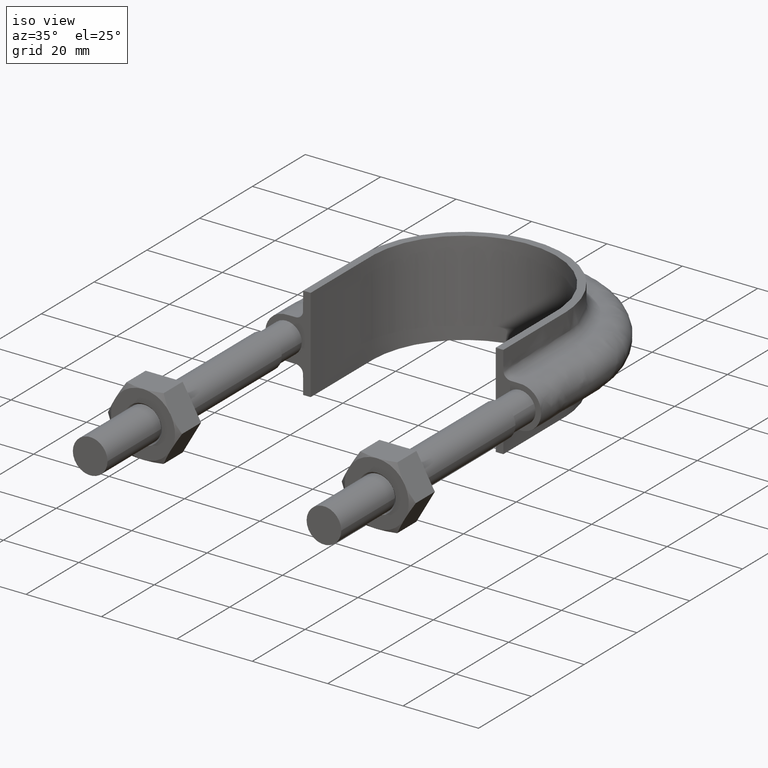
[diagram: clean part render]
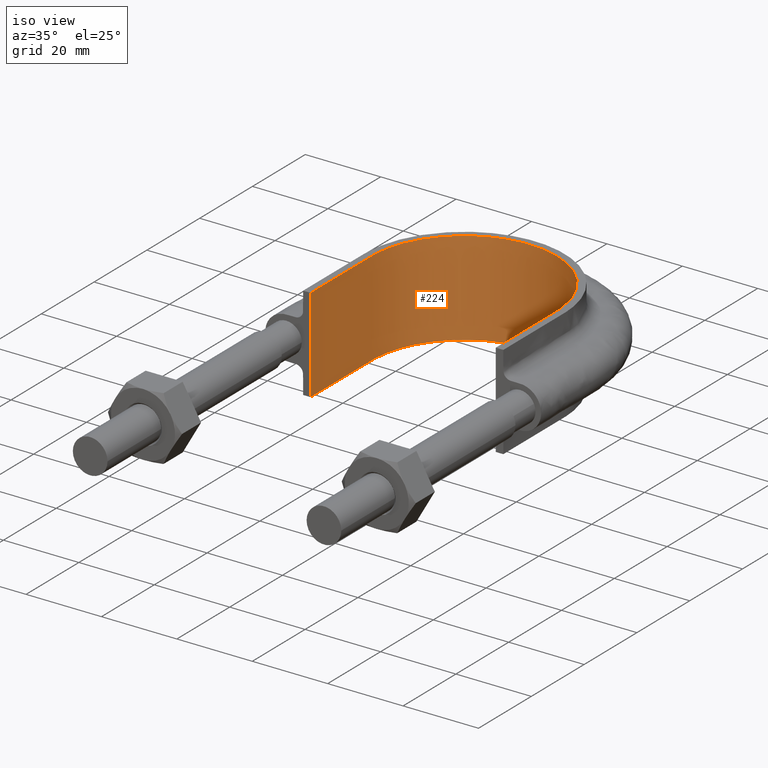
[diagram: same view with one face highlighted and labeled with its STEP entity id]
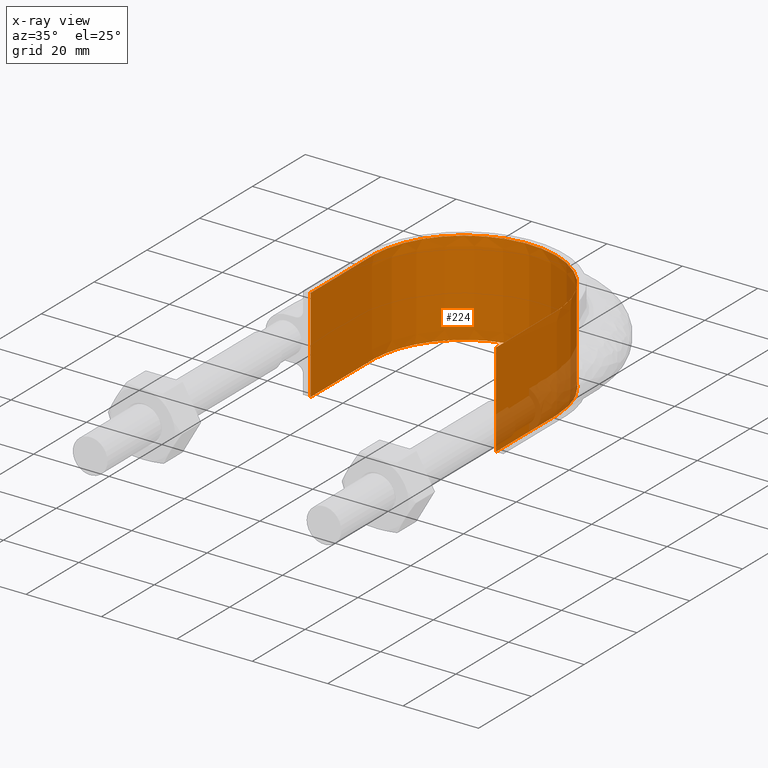
[diagram: x-ray of the same camera — body ghosted, the highlighted face saturated]
A machine part, iso view. The second image highlights one B-rep face of the part: STEP entity #224.
The next image is the same camera in x-ray: the body ghosted, the highlighted face saturated — about 9% of this face is hidden behind the body in this view.
In plain terms, the highlighted face is a SurfaceOfExtrusion surface.
Its self-contained STEP definition (entity closure, byte-faithful):
#224 = ADVANCED_FACE( '', ( #308 ), #309, .T. );
#308 = FACE_OUTER_BOUND( '', #1006, .T. );
#309 = SURFACE_OF_LINEAR_EXTRUSION( '', #1007, #1008 );
#1006 = EDGE_LOOP( '', ( #1499, #1500, #1501, #1502 ) );
#1007 = B_SPLINE_CURVE_WITH_KNOTS( '', 3, ( #1503, #1504, #1505, #1506, #1507, #1508, #1509, #1510, #1511, #1512, #1513, #1514, #1515, #1516, #1517, #1518, #1519 ), .UNSPECIFIED., .F., .F., ( 4, 3, 1, 1, 1, 1, 1, 1, 1, 3, 4 ), ( -7.85424354243542, -7.00000000000000, -6.50000000000000, -6.00000000000000, -5.00000000000000, -4.00000000000000, -3.00000000000000, -2.00000000000000, -1.50000000000000, -1.00000000000000, -0.145756457564576 ), .UNSPECIFIED. );
#1008 = VECTOR( '', #1520, 1000.00000000000 );
#1499 = ORIENTED_EDGE( '', *, *, #2003, .T. );
#1500 = ORIENTED_EDGE( '', *, *, #2008, .T. );
#1501 = ORIENTED_EDGE( '', *, *, #2014, .F. );
#1502 = ORIENTED_EDGE( '', *, *, #2011, .T. );
#1503 = CARTESIAN_POINT( '', ( 24.5500000000000, 74.3000000000000, 12.5000100000910 ) );
#1504 = CARTESIAN_POINT( '', ( 24.5500000000000, 82.0166666666667, 12.5000100000910 ) );
#1505 = CARTESIAN_POINT( '', ( 24.5500000000000, 89.7333333333333, 12.5000100000910 ) );
#1506 = CARTESIAN_POINT( '', ( 24.5500000000000, 97.4500000000000, 12.5000100000910 ) );
#1507 = CARTESIAN_POINT( '', ( 24.5500000000000, 99.5780025041717, 12.5000100000910 ) );
#1508 = CARTESIAN_POINT( '', ( 23.9738358905282, 103.879860777333, 12.5000100000910 ) );
#1509 = CARTESIAN_POINT( '', ( 20.6884777838097, 111.863307199879, 12.5000100000910 ) );
#1510 = CARTESIAN_POINT( '', ( 12.8483754366917, 119.705931314422, 12.5000100000910 ) );
#1511 = CARTESIAN_POINT( '', ( 2.20195579749634E-014, 123.147034342789, 12.5000100000910 ) );
#1512 = CARTESIAN_POINT( '', ( -12.8483754366917, 119.705931314422, 12.5000100000910 ) );
#1513 = CARTESIAN_POINT( '', ( -20.6884777838097, 111.863307199879, 12.5000100000910 ) );
#1514 = CARTESIAN_POINT( '', ( -23.9738358905281, 103.879860777333, 12.5000100000910 ) );
#1515 = CARTESIAN_POINT( '', ( -24.5500000000000, 99.5780025041717, 12.5000100000910 ) );
#1516 = CARTESIAN_POINT( '', ( -24.5500000000000, 97.4500000000000, 12.5000100000910 ) );
#1517 = CARTESIAN_POINT( '', ( -24.5500000000000, 89.7333333333333, 12.5000100000910 ) );
#1518 = CARTESIAN_POINT( '', ( -24.5500000000000, 82.0166666666667, 12.5000100000910 ) );
#1519 = CARTESIAN_POINT( '', ( -24.5500000000000, 74.3000000000000, 12.5000100000910 ) );
#1520 = DIRECTION( '', ( 0.000000000000000, 0.000000000000000, -1.00000000000000 ) );
#2003 = EDGE_CURVE( '', #2155, #2156, #2157, .T. );
#2008 = EDGE_CURVE( '', #2156, #2165, #2166, .F. );
#2011 = EDGE_CURVE( '', #2170, #2155, #2171, .T. );
#2014 = EDGE_CURVE( '', #2170, #2165, #2175, .T. );
#2155 = VERTEX_POINT( '', #2405 );
#2156 = VERTEX_POINT( '', #2406 );
#2157 = LINE( '', #2407, #2408 );
#2165 = VERTEX_POINT( '', #2457 );
#2166 = B_SPLINE_CURVE_WITH_KNOTS( '', 3, ( #2458, #2459, #2460, #2461, #2462, #2463, #2464, #2465, #2466, #2467, #2468, #2469, #2470, #2471, #2472, #2473, #2474 ), .UNSPECIFIED., .F., .F., ( 4, 3, 1, 1, 1, 1, 1, 1, 1, 3, 4 ), ( -7.85424354243542, -7.00000000000000, -6.50000000000000, -6.00000000000000, -5.00000000000000, -4.00000000000000, -3.00000000000000, -2.00000000000000, -1.50000000000000, -1.00000000000000, -0.145756457564576 ), .UNSPECIFIED. );
#2170 = VERTEX_POINT( '', #2495 );
#2171 = B_SPLINE_CURVE_WITH_KNOTS( '', 3, ( #2496, #2497, #2498, #2499, #2500, #2501, #2502, #2503, #2504, #2505, #2506, #2507, #2508, #2509, #2510, #2511, #2512, #2513, #2514, #2515, #2516, #2517, #2518, #2519, #2520, #2521, #2522, #2523, #2524, #2525, #2526, #2527, #2528, #2529, #2530, #2531, #2532, #2533, #2534, #2535, #2536, #2537, #2538, #2539, #2540, #2541, #2542, #2543, #2544, #2545, #2546, #2547, #2548, #2549, #2550, #2551, #2552, #2553, #2554, #2555, #2556, #2557, #2558, #2559, #2560, #2561, #2562 ), .UNSPECIFIED., .F., .F., ( 4, 1, 2, 2, 2, 2, 2, 2, 2, 2, 2, 2, 2, 2, 2, 2, 2, 2, 2, 2, 2, 2, 2, 2, 2, 2, 2, 2, 2, 2, 2, 2, 1, 1, 4 ), ( 0.000000000000000, 0.0154145326467002, 0.0231217989700503, 0.0250486155508878, 0.0269754321317254, 0.0308290652934005, 0.0346826984550756, 0.0366095150359132, 0.0385363316167507, 0.0423899647784258, 0.0443167813592634, 0.0462435979401010, 0.0500972311017761, 0.0520240476826136, 0.0539508642634512, 0.0578044974251263, 0.0597313140059639, 0.0616581305868014, 0.0655117637484765, 0.0674385803293141, 0.0693653969101517, 0.0732190300718268, 0.0751458466526643, 0.0770726632335019, 0.0809262963951769, 0.0828531129760145, 0.0847799295568520, 0.0924871958802022, 0.0944140124610398, 0.0963408290418773, 0.100194462203552, 0.102121278784390, 0.104048095365227, 0.107901728526903, 0.123316261173603 ), .UNSPECIFIED. );
#2175 = LINE( '', #2583, #2584 );
#2405 = CARTESIAN_POINT( '', ( -24.5500000000000, 74.3000000000000, 12.5000000000000 ) );
#2406 = CARTESIAN_POINT( '', ( -24.5500000000000, 74.3000000000000, -12.5000000000000 ) );
#2407 = CARTESIAN_POINT( '', ( -24.5500000000000, 74.3000000000000, 12.5000100000910 ) );
#2408 = VECTOR( '', #3051, 1000.00000000000 );
#2457 = CARTESIAN_POINT( '', ( 24.5500000000000, 74.3000000000000, -12.5000000000000 ) );
#2458 = CARTESIAN_POINT( '', ( 24.5500000000000, 74.3000000000000, -12.5000000000000 ) );
#2459 = CARTESIAN_POINT( '', ( 24.5500000000000, 82.0166666666667, -12.5000000000000 ) );
#2460 = CARTESIAN_POINT( '', ( 24.5500000000000, 89.7333333333333, -12.5000000000000 ) );
#2461 = CARTESIAN_POINT( '', ( 24.5500000000000, 97.4500000000000, -12.5000000000000 ) );
#2462 = CARTESIAN_POINT( '', ( 24.5500000000000, 99.5780025041717, -12.5000000000000 ) );
#2463 = CARTESIAN_POINT( '', ( 23.9738358905282, 103.879860777333, -12.5000000000000 ) );
#2464 = CARTESIAN_POINT( '', ( 20.6884777838097, 111.863307199879, -12.5000000000000 ) );
#2465 = CARTESIAN_POINT( '', ( 12.8483754366917, 119.705931314422, -12.5000000000000 ) );
#2466 = CARTESIAN_POINT( '', ( 2.20195579749634E-014, 123.147034342789, -12.5000000000000 ) );
#2467 = CARTESIAN_POINT( '', ( -12.8483754366917, 119.705931314422, -12.5000000000000 ) );
#2468 = CARTESIAN_POINT( '', ( -20.6884777838097, 111.863307199879, -12.5000000000000 ) );
#2469 = CARTESIAN_POINT( '', ( -23.9738358905281, 103.879860777333, -12.5000000000000 ) );
#2470 = CARTESIAN_POINT( '', ( -24.5500000000000, 99.5780025041717, -12.5000000000000 ) );
#2471 = CARTESIAN_POINT( '', ( -24.5500000000000, 97.4500000000000, -12.5000000000000 ) );
#2472 = CARTESIAN_POINT( '', ( -24.5500000000000, 89.7333333333333, -12.5000000000000 ) );
#2473 = CARTESIAN_POINT( '', ( -24.5500000000000, 82.0166666666667, -12.5000000000000 ) );
#2474 = CARTESIAN_POINT( '', ( -24.5500000000000, 74.3000000000000, -12.5000000000000 ) );
#2495 = CARTESIAN_POINT( '', ( 24.5500000000000, 74.3000000000000, 12.5000000000000 ) );
#2496 = CARTESIAN_POINT( '', ( 24.5500000000000, 74.3000000000000, 12.5000000000000 ) );
#2497 = CARTESIAN_POINT( '', ( 24.5500000000000, 79.4384221999800, 12.5000000000000 ) );
#2498 = CARTESIAN_POINT( '', ( 24.5500000000000, 87.1460554999499, 12.5000000000000 ) );
#2499 = CARTESIAN_POINT( '', ( 24.5500000000000, 94.8536887999199, 12.5000000000000 ) );
#2500 = CARTESIAN_POINT( '', ( 24.5500000000000, 98.0652026749074, 12.5000000000000 ) );
#2501 = CARTESIAN_POINT( '', ( 24.5252751330927, 98.7072641688934, 12.5000000000000 ) );
#2502 = CARTESIAN_POINT( '', ( 24.4234462537604, 99.9908760077757, 12.5000000000000 ) );
#2503 = CARTESIAN_POINT( '', ( 24.3467657946690, 100.634220258934, 12.5000000000000 ) );
#2504 = CARTESIAN_POINT( '', ( 24.0418819320213, 102.551204048510, 12.5000000000000 ) );
#2505 = CARTESIAN_POINT( '', ( 23.7423938741596, 103.798075614365, 12.5000000000000 ) );
#2506 = CARTESIAN_POINT( '', ( 22.9567434107526, 106.231455730255, 12.5000000000000 ) );
#2507 = CARTESIAN_POINT( '', ( 22.4705596365819, 107.417957370532, 12.5000000000000 ) );
#2508 = CARTESIAN_POINT( '', ( 21.5925627875954, 109.149619348676, 12.5000000000000 ) );
#2509 = CARTESIAN_POINT( '', ( 21.2766071075014, 109.714973605172, 12.5000000000000 ) );
#2510 = CARTESIAN_POINT( '', ( 20.6053719022684, 110.810534866425, 12.5000000000000 ) );
#2511 = CARTESIAN_POINT( '', ( 20.2492833691971, 111.342698259692, 12.5000000000000 ) );
#2512 = CARTESIAN_POINT( '', ( 19.1215068537777, 112.893787664672, 12.5000000000000 ) );
#2513 = CARTESIAN_POINT( '', ( 18.2907926568853, 113.867682679625, 12.5000000000000 ) );
#2514 = CARTESIAN_POINT( '', ( 16.9250762587396, 115.237248160513, 12.5000000000000 ) );
#2515 = CARTESIAN_POINT( '', ( 16.4483141734127, 115.679458076329, 12.5000000000000 ) );
#2516 = CARTESIAN_POINT( '', ( 15.4703087185621, 116.517984206518, 12.5000000000000 ) );
#2517 = CARTESIAN_POINT( '', ( 14.9674075928235, 116.916154886691, 12.5000000000000 ) );
#2518 = CARTESIAN_POINT( '', ( 13.4174319314453, 118.048031587190, 12.5000000000000 ) );
#2519 = CARTESIAN_POINT( '', ( 12.3291014903938, 118.719127124092, 12.5000000000000 ) );
#2520 = CARTESIAN_POINT( '', ( 10.6113550739500, 119.596392806505, 12.5000000000000 ) );
#2521 = CARTESIAN_POINT( '', ( 10.0221200459754, 119.868384793433, 12.5000000000000 ) );
#2522 = CARTESIAN_POINT( '', ( 8.82789979738735, 120.363314078471, 12.5000000000000 ) );
#2523 = CARTESIAN_POINT( '', ( 8.22453257139379, 120.585861709962, 12.5000000000000 ) );
#2524 = CARTESIAN_POINT( '', ( 6.39627757875444, 121.181214530966, 12.5000000000000 ) );
#2525 = CARTESIAN_POINT( '', ( 5.15338195845855, 121.482308901390, 12.5000000000000 ) );
#2526 = CARTESIAN_POINT( '', ( 3.25266287101866, 121.789095428283, 12.5000000000000 ) );
#2527 = CARTESIAN_POINT( '', ( 2.61299113566870, 121.867071354940, 12.5000000000000 ) );
#2528 = CARTESIAN_POINT( '', ( 1.32093241036658, 121.972388560719, 12.5000000000000 ) );
#2529 = CARTESIAN_POINT( '', ( 0.676406080425299, 121.999046675169, 12.5000000000000 ) );
#2530 = CARTESIAN_POINT( '', ( -1.24870371014262, 122.001831348721, 12.5000000000000 ) );
#2531 = CARTESIAN_POINT( '', ( -2.52265182528364, 121.901467818298, 12.5000000000000 ) );
#2532 = CARTESIAN_POINT( '', ( -4.41989760294836, 121.603117496314, 12.5000000000000 ) );
#2533 = CARTESIAN_POINT( '', ( -5.05001948103506, 121.478882110562, 12.5000000000000 ) );
#2534 = CARTESIAN_POINT( '', ( -6.30559148152638, 121.179922232146, 12.5000000000000 ) );
#2535 = CARTESIAN_POINT( '', ( -6.93138081059463, 121.004801946249, 12.5000000000000 ) );
#2536 = CARTESIAN_POINT( '', ( -8.76889753233618, 120.412561446254, 12.5000000000000 ) );
#2537 = CARTESIAN_POINT( '', ( -9.95225725658806, 119.926780134564, 12.5000000000000 ) );
#2538 = CARTESIAN_POINT( '', ( -11.6646188489645, 119.061238084006, 12.5000000000000 ) );
#2539 = CARTESIAN_POINT( '', ( -12.2248697137767, 118.749715852754, 12.5000000000000 ) );
#2540 = CARTESIAN_POINT( '', ( -13.3236776153919, 118.079298526967, 12.5000000000000 ) );
#2541 = CARTESIAN_POINT( '', ( -13.8646027205754, 117.718764312176, 12.5000000000000 ) );
#2542 = CARTESIAN_POINT( '', ( -15.4323331862347, 116.581610342879, 12.5000000000000 ) );
#2543 = CARTESIAN_POINT( '', ( -16.4066904175183, 115.749931319893, 12.5000000000000 ) );
#2544 = CARTESIAN_POINT( '', ( -17.7664797273133, 114.396670964759, 12.5000000000000 ) );
#2545 = CARTESIAN_POINT( '', ( -18.2026751411940, 113.927846292992, 12.5000000000000 ) );
#2546 = CARTESIAN_POINT( '', ( -19.0403725195657, 112.954141191624, 12.5000000000000 ) );
#2547 = CARTESIAN_POINT( '', ( -19.4425779981796, 112.448302440163, 12.5000000000000 ) );
#2548 = CARTESIAN_POINT( '', ( -21.3557319354795, 109.835383435035, 12.5000000000000 ) );
#2549 = CARTESIAN_POINT( '', ( -22.5176023500940, 107.559503335252, 12.5000000000000 ) );
#2550 = CARTESIAN_POINT( '', ( -23.5216696114527, 104.489036138194, 12.5000000000000 ) );
#2551 = CARTESIAN_POINT( '', ( -23.6990122608683, 103.864746296536, 12.5000000000000 ) );
#2552 = CARTESIAN_POINT( '', ( -24.0024245935730, 102.614723986779, 12.5000000000000 ) );
#2553 = CARTESIAN_POINT( '', ( -24.1294131227665, 101.986428305825, 12.5000000000000 ) );
#2554 = CARTESIAN_POINT( '', ( -24.4371992964721, 100.091817044920, 12.5000000000000 ) );
#2555 = CARTESIAN_POINT( '', ( -24.5457173567177, 98.8158968179810, 12.5000000000000 ) );
#2556 = CARTESIAN_POINT( '', ( -24.5519571685428, 96.8812155098235, 12.5000000000000 ) );
#2557 = CARTESIAN_POINT( '', ( -24.5500000000000, 96.2357852822297, 12.5000000000000 ) );
#2558 = CARTESIAN_POINT( '', ( -24.5500000000000, 94.9454449715104, 12.5000000000000 ) );
#2559 = CARTESIAN_POINT( '', ( -24.5500000000000, 93.0099345054312, 12.5000000000000 ) );
#2560 = CARTESIAN_POINT( '', ( -24.5500000000000, 85.9130627964745, 12.5000000000000 ) );
#2561 = CARTESIAN_POINT( '', ( -24.5500000000000, 79.4613612428776, 12.5000000000000 ) );
#2562 = CARTESIAN_POINT( '', ( -24.5500000000000, 74.3000000000000, 12.5000000000000 ) );
#2583 = CARTESIAN_POINT( '', ( 24.5500000000000, 74.3000000000000, 12.5000100000910 ) );
#2584 = VECTOR( '', #3056, 1000.00000000000 );
#3051 = DIRECTION( '', ( 0.000000000000000, 0.000000000000000, -1.00000000000000 ) );
#3056 = DIRECTION( '', ( 0.000000000000000, 0.000000000000000, -1.00000000000000 ) );